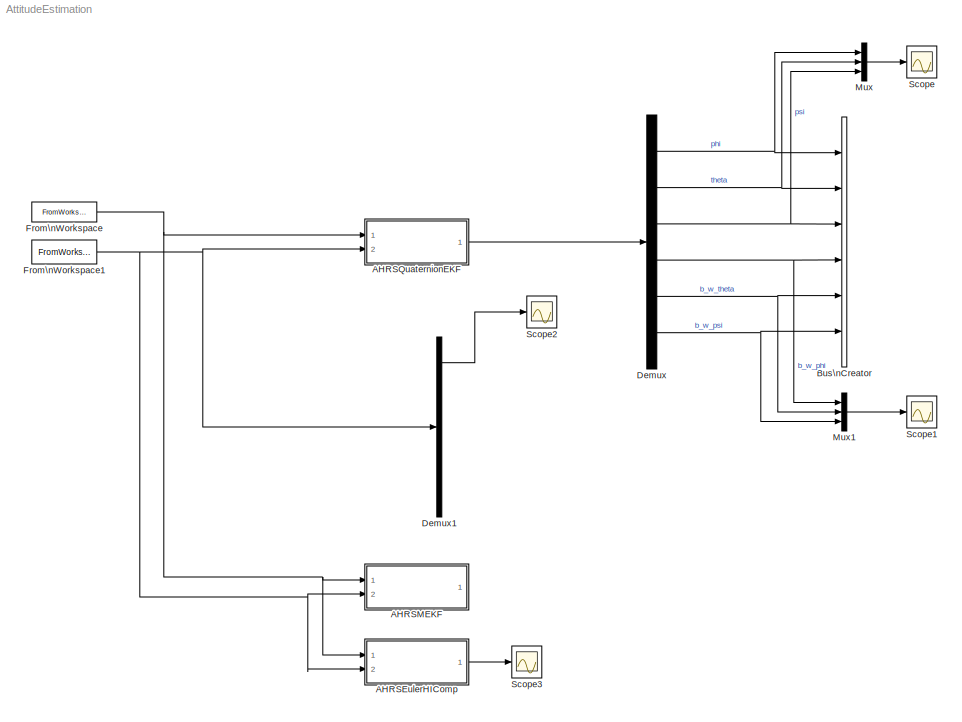
MODEL AttitudeEstimation
KIND model
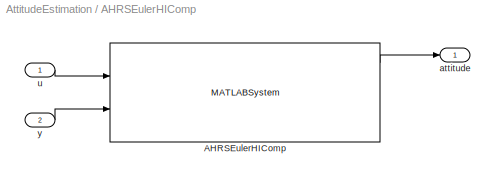
BLOCK [SubSystem] AHRSEulerHIComp
  Ports = [2, 1]
  RequestExecContextInheritance = off
  SID = 47
  TreatAsAtomicUnit = on
BLOCK [MATLABSystem] AHRSEulerHIComp/AHRSEulerHIComp
  MaskDisplay = disp('AHRSEulerEKFHIComp');\nport_label('input',1,'u');\nport_label('input',2,'y');\nport_label('output',1,'attitude');\nport_label('output',2,'b_w');\nport_label('output',3,'m_e');\nport_label('output',4,'m_b');\n
  MaskType = AHRSEulerEKFHIComp
  P0 = P0_eulerEKFHIComp
  Ports = [2, 4]
  SID = 50
  SimulateUsing = Interpreted execution
  System = AHRSEulerEKFHIComp
  delta_d = delta_d
  delta_i = delta_i
  g_mps2 = g_mps2
  sampleTime = TA
  sigma_2_a = sigma2.a_b
  sigma_2_b_w = sigma2.b_w
  sigma_2_w = sigma2.w_b
  sigma_2_yaw = sigma2.mag
  x0 = x0_eulerEKFHIComp
BLOCK [Outport] AHRSEulerHIComp/attitude
  IconDisplay = Port number
  SID = 51
BLOCK [Inport] AHRSEulerHIComp/u
  IconDisplay = Port number
  SID = 48
BLOCK [Inport] AHRSEulerHIComp/y
  IconDisplay = Port number
  Port = 2
  SID = 49
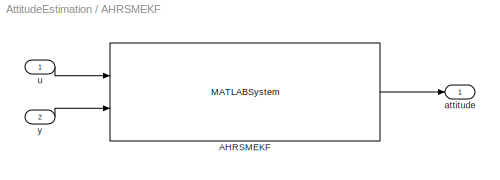
BLOCK [SubSystem] AHRSMEKF
  Ports = [2, 1]
  RequestExecContextInheritance = off
  SID = 21
  TreatAsAtomicUnit = on
BLOCK [MATLABSystem] AHRSMEKF/AHRSMEKF
  MaskDisplay = disp('AHRSMEKF');\nport_label('input',1,'u');\nport_label('input',2,'y');\nport_label('output',1,'attitude');\n
  MaskType = AHRSMEKF
  Ports = [2, 1]
  SID = 24
  SimulateUsing = Code generation
  System = AHRSMEKF
  delta_d = delta_d
  delta_i = delta_i
  g_mps2 = g_mps2
  sampleTime = TA
  sigma_2_a = sigma2.a_b
  sigma_2_b_w = sigma2.b_w
  sigma_2_w = sigma2.w_b
  sigma_2_yaw = sigma2.mag
BLOCK [Outport] AHRSMEKF/attitude
  IconDisplay = Port number
  SID = 25
BLOCK [Inport] AHRSMEKF/u
  IconDisplay = Port number
  SID = 22
BLOCK [Inport] AHRSMEKF/y
  IconDisplay = Port number
  Port = 2
  SID = 23
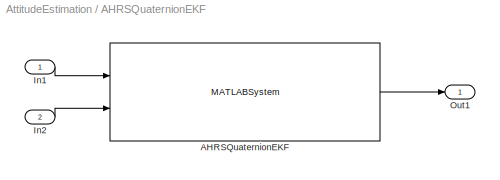
BLOCK [SubSystem] AHRSQuaternionEKF
  Ports = [2, 1]
  RequestExecContextInheritance = off
  SID = 16
  TreatAsAtomicUnit = on
BLOCK [MATLABSystem] AHRSQuaternionEKF/AHRSQuaternionEKF
  MaskDisplay = disp('AHRSQuaternionEKF');\nport_label('input',1,'u');\nport_label('input',2,'y');\nport_label('output',1,'states');\n
  MaskType = AHRSQuaternionEKF
  P0 = P0_quaternionEKF
  Ports = [2, 1]
  SID = 1
  SimulateUsing = Interpreted execution
  System = AHRSQuaternionEKF
  TA = TA
  delta_d = delta_d
  delta_i = delta_i
  g_mps2 = g_mps2
  sigma_2_a = sigma2.a_b
  sigma_2_b_w = sigma2.b_w
  sigma_2_quaternion = sigma2.quaternion
  sigma_2_yaw = sigma2.mag
  x0 = x0_quaternionEKF
BLOCK [Inport] AHRSQuaternionEKF/In1
  IconDisplay = Port number
  SID = 17
BLOCK [Inport] AHRSQuaternionEKF/In2
  IconDisplay = Port number
  Port = 2
  SID = 19
BLOCK [Outport] AHRSQuaternionEKF/Out1
  IconDisplay = Port number
  SID = 18
BLOCK [BusCreator] Bus\nCreator
  DisplayOption = bar
  InheritFromInputs = on
  Inputs = 6
  Ports = [6, 1]
  SID = 9
BLOCK [Demux] Demux
  DisplayOption = bar
  Outputs = 6
  Ports = [1, 6]
  SID = 8
BLOCK [Demux] Demux1
  DisplayOption = bar
  Outputs = 6
  Ports = [1, 6]
  SID = 14
BLOCK [FromWorkspace] From\nWorkspace
  SID = 4
  SampleTime = 0
  VariableName = simulink_u
  ZeroCross = on
BLOCK [FromWorkspace] From\nWorkspace1
  SID = 5
  SampleTime = 0
  VariableName = simulink_y
  ZeroCross = on
BLOCK [Mux] Mux
  DisplayOption = bar
  Inputs = 3
  Ports = [3, 1]
  SID = 11
BLOCK [Mux] Mux1
  DisplayOption = bar
  Inputs = 3
  Ports = [3, 1]
  SID = 12
BLOCK [Scope] Scope
  Floating = off
  NumInputPorts = 1
  Ports = [1]
  SID = 10
  ScopeSpecificationString = Simulink.scopes.TimeScopeBlockCfg('CurrentConfiguration', extmgr.ConfigurationSet(extmgr.Configuration('Core','General UI',true),extmgr.Configuration('Core','Source UI',true),extmgr.Configuration('Sources','WiredSimulink',true),extmgr.Configuration('Visuals','Time Domain',true,'SerializedDisplays',{struct('MinYLimReal','10.90156','MaxYLimReal','100.08016','YLabelReal','','MinYLimMag','10.90156','M...<+1412ch>
BLOCK [Scope] Scope1
  Floating = off
  NumInputPorts = 1
  Ports = [1]
  SID = 13
  ScopeSpecificationString = Simulink.scopes.TimeScopeBlockCfg('CurrentConfiguration', extmgr.ConfigurationSet(extmgr.Configuration('Core','General UI',true),extmgr.Configuration('Core','Source UI',true),extmgr.Configuration('Sources','WiredSimulink',true,'DataLoggingVariableName','ScopeData1'),extmgr.Configuration('Visuals','Time Domain',true,'SerializedDisplays',{struct('MinYLimReal','-2.62132','MaxYLimReal','12.30035','YLa...<+1421ch>
BLOCK [Scope] Scope2
  Floating = off
  NumInputPorts = 1
  Ports = [1]
  SID = 15
  ScopeSpecificationString = Simulink.scopes.TimeScopeBlockCfg('CurrentConfiguration', extmgr.ConfigurationSet(extmgr.Configuration('Core','General UI',true),extmgr.Configuration('Core','Source UI',true),extmgr.Configuration('Sources','WiredSimulink',true,'DataLoggingVariableName','ScopeData2'),extmgr.Configuration('Visuals','Time Domain',true,'SerializedDisplays',{struct('MinYLimReal','-0.35207','MaxYLimReal','0.03929','YLab...<+1396ch>
BLOCK [Scope] Scope3
  Floating = off
  NumInputPorts = 1
  Ports = [1]
  SID = 52
  ScopeSpecificationString = Simulink.scopes.TimeScopeBlockCfg('CurrentConfiguration', extmgr.ConfigurationSet(extmgr.Configuration('Core','General UI',true),extmgr.Configuration('Core','Source UI',true),extmgr.Configuration('Sources','WiredSimulink',true,'DataLoggingVariableName','ScopeData1'),extmgr.Configuration('Visuals','Time Domain',true,'SerializedDisplays',{struct('MinYLimReal','-1.24138','MaxYLimReal','0.46075','YLab...<+1442ch>
LINE AHRSEulerHIComp/AHRSEulerHIComp:1 -> AHRSEulerHIComp/attitude:1
LINE AHRSEulerHIComp/u:1 -> AHRSEulerHIComp/AHRSEulerHIComp:1
LINE AHRSEulerHIComp/y:1 -> AHRSEulerHIComp/AHRSEulerHIComp:2
LINE AHRSEulerHIComp:1 -> Scope3:1
LINE AHRSMEKF/AHRSMEKF:1 -> AHRSMEKF/attitude:1
LINE AHRSMEKF/u:1 -> AHRSMEKF/AHRSMEKF:1
LINE AHRSMEKF/y:1 -> AHRSMEKF/AHRSMEKF:2
LINE AHRSQuaternionEKF/AHRSQuaternionEKF:1 -> AHRSQuaternionEKF/Out1:1
LINE AHRSQuaternionEKF/In1:1 -> AHRSQuaternionEKF/AHRSQuaternionEKF:1
LINE AHRSQuaternionEKF/In2:1 -> AHRSQuaternionEKF/AHRSQuaternionEKF:2
LINE AHRSQuaternionEKF:1 -> Demux:1
LINE Demux1:1 -> Scope2:1
NET Demux:1 -> Bus\nCreator:1, Mux:1
NET Demux:2 -> Bus\nCreator:2, Mux:2
NET Demux:3 -> Bus\nCreator:3, Mux:3
NET Demux:4 -> Bus\nCreator:4, Mux1:1
NET Demux:5 -> Bus\nCreator:5, Mux1:2
NET Demux:6 -> Bus\nCreator:6, Mux1:3
NET From\nWorkspace1:1 -> AHRSEulerHIComp:2, AHRSMEKF:2, AHRSQuaternionEKF:2, Demux1:1
NET From\nWorkspace:1 -> AHRSEulerHIComp:1, AHRSMEKF:1, AHRSQuaternionEKF:1
LINE Mux1:1 -> Scope1:1
LINE Mux:1 -> Scope:1
note: NET lines group one-source signal fan-out (src -> all destinations, sorted); 1:1 wires keep LINE
